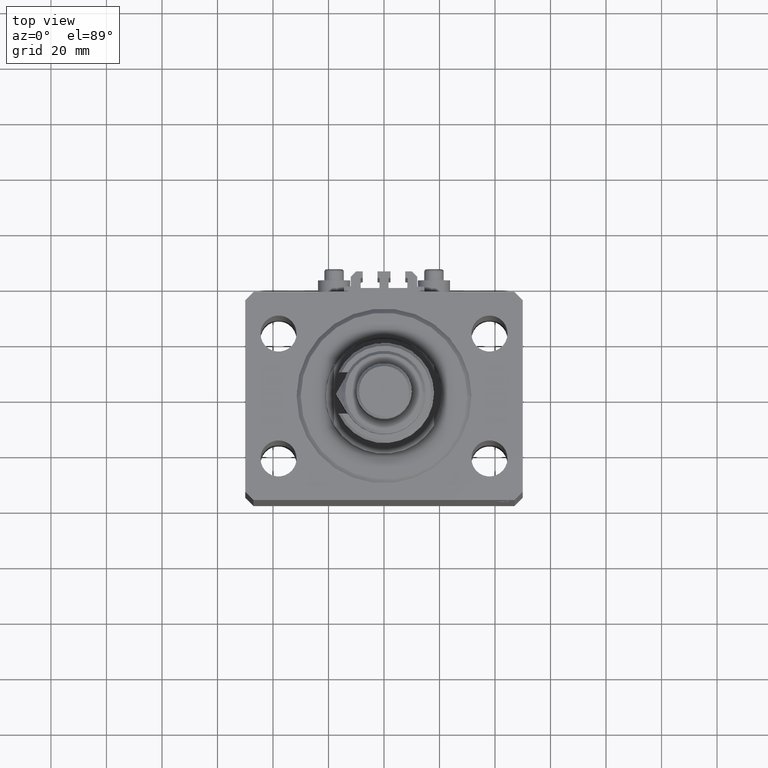
[diagram: clean part render]
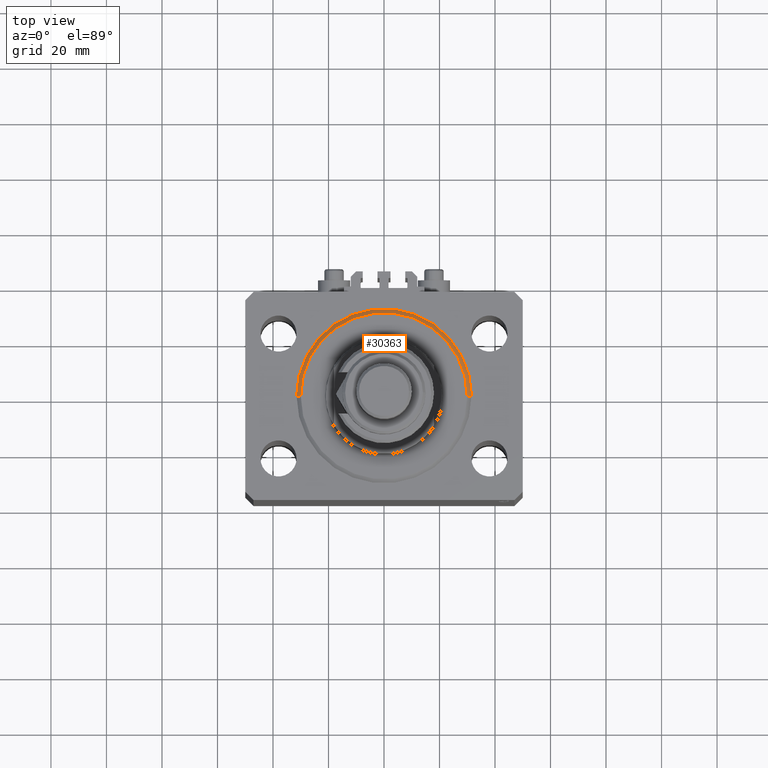
[diagram: same view with one face highlighted and labeled with its STEP entity id]
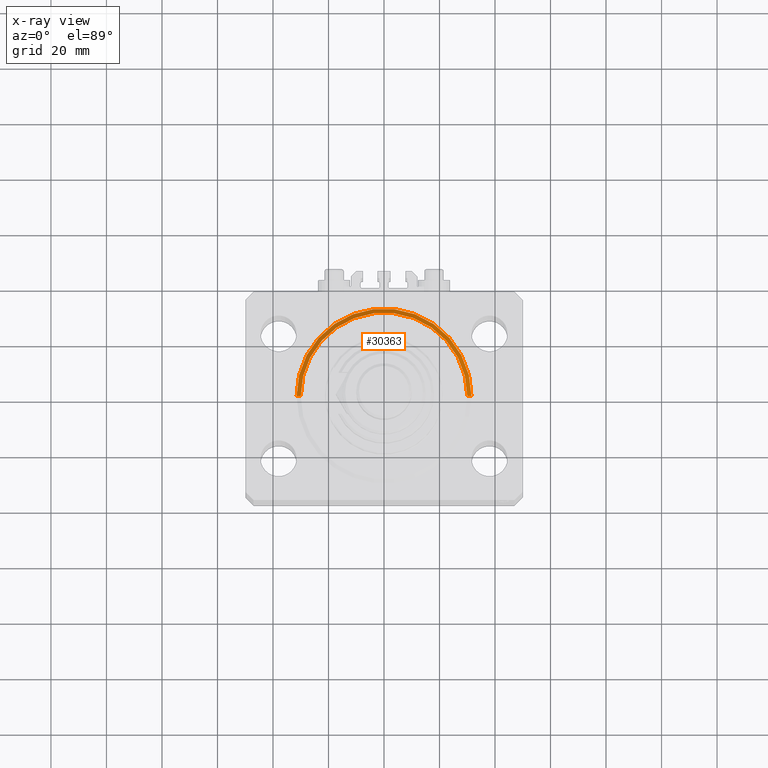
[diagram: x-ray of the same camera — body ghosted, the highlighted face saturated]
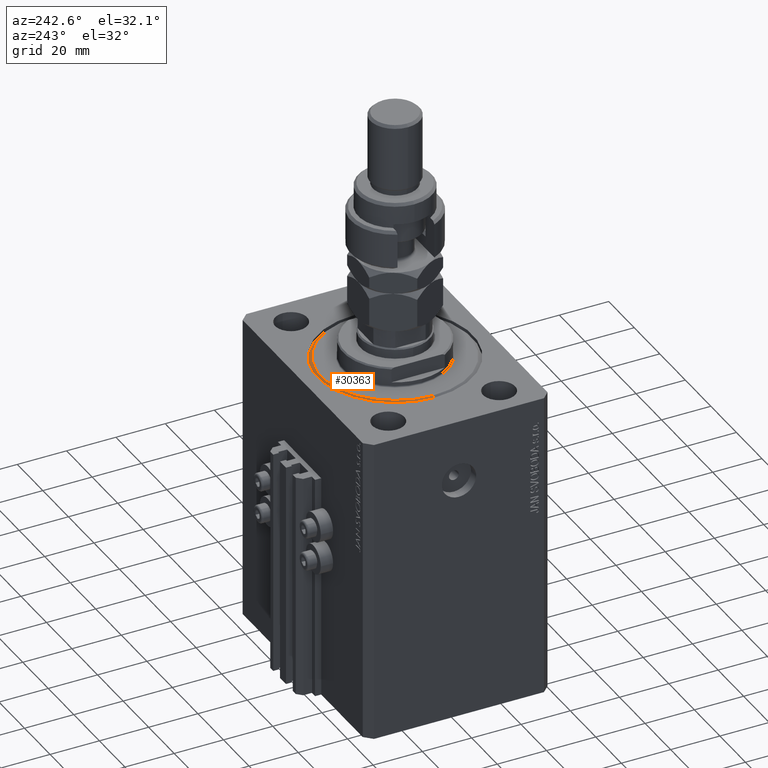
[diagram: same view with one face highlighted and labeled with its STEP entity id]
A machine part, top view. The second image highlights one B-rep face of the part: STEP entity #30363.
The next image is the same camera in x-ray: the body ghosted, the highlighted face saturated — about 0% of this face is hidden behind the body in this view.
A second angle (auxiliary view) of the same face is appended — the face is thin or edge-on in the first view.
In plain terms, the highlighted conical surface has half-angle 45 deg.
Its self-contained STEP definition (entity closure, byte-faithful):
#783 = ORIENTED_EDGE ( 'NONE', *, *, #45219, .F. ) ;
#3320 = CARTESIAN_POINT ( 'NONE',  ( -31.50000000000000000, 0.000000000000000000, 1.499999999999980460 ) ) ;
#4499 = CARTESIAN_POINT ( 'NONE',  ( 31.50000000000000000, 0.000000000000000000, 1.499999999999980460 ) ) ;
#5014 = DIRECTION ( 'NONE',  ( 0.7071067811865474617, 0.000000000000000000, 0.7071067811865474617 ) ) ;
#8256 = DIRECTION ( 'NONE',  ( 1.000000000000000000, 0.000000000000000000, 0.000000000000000000 ) ) ;
#8547 = CARTESIAN_POINT ( 'NONE',  ( 0.000000000000000000, 0.000000000000000000, 1.499999999999980460 ) ) ;
#8799 = DIRECTION ( 'NONE',  ( 1.000000000000000000, 0.000000000000000000, 0.000000000000000000 ) ) ;
#9583 = CARTESIAN_POINT ( 'NONE',  ( 30.00000000000002132, 0.000000000000000000, 0.000000000000000000 ) ) ;
#11577 = LINE ( 'NONE', #26322, #41954 ) ;
#13952 = EDGE_LOOP ( 'NONE', ( #783, #35321, #17487, #43012 ) ) ;
#14186 = VERTEX_POINT ( 'NONE', #38148 ) ;
#17487 = ORIENTED_EDGE ( 'NONE', *, *, #35734, .F. ) ;
#17535 = AXIS2_PLACEMENT_3D ( 'NONE', #8547, #39549, #48384 ) ;
#20227 = DIRECTION ( 'NONE',  ( -0.000000000000000000, -0.000000000000000000, -1.000000000000000000 ) ) ;
#20229 = FACE_OUTER_BOUND ( 'NONE', #13952, .T. ) ;
#20810 = VERTEX_POINT ( 'NONE', #3320 ) ;
#20939 = VECTOR ( 'NONE', #5014, 1000.000000000000114 ) ;
#20982 = CARTESIAN_POINT ( 'NONE',  ( 0.000000000000000000, 0.000000000000000000, 0.000000000000000000 ) ) ;
#26322 = CARTESIAN_POINT ( 'NONE',  ( -31.50000000000000000, 3.857637417314162689E-15, 1.499999999999980460 ) ) ;
#27075 = DIRECTION ( 'NONE',  ( -0.7071067811865474617, 8.659560562354932858E-17, 0.7071067811865474617 ) ) ;
#27549 = DIRECTION ( 'NONE',  ( -0.000000000000000000, -0.000000000000000000, 1.000000000000000000 ) ) ;
#27649 = AXIS2_PLACEMENT_3D ( 'NONE', #20982, #20227, #8799 ) ;
#30363 = ADVANCED_FACE ( 'NONE', ( #20229 ), #38622, .T. ) ;
#31496 = CIRCLE ( 'NONE', #35571, 31.50000000000000000 ) ;
#32162 = EDGE_CURVE ( 'NONE', #14186, #20810, #11577, .T. ) ;
#32429 = LINE ( 'NONE', #4499, #20939 ) ;
#32523 = CIRCLE ( 'NONE', #27649, 30.00000000000002132 ) ;
#35321 = ORIENTED_EDGE ( 'NONE', *, *, #32162, .T. ) ;
#35571 = AXIS2_PLACEMENT_3D ( 'NONE', #46831, #27549, #8256 ) ;
#35734 = EDGE_CURVE ( 'NONE', #41999, #20810, #31496, .T. ) ;
#36223 = CARTESIAN_POINT ( 'NONE',  ( 31.50000000000000000, 3.857637417314162689E-15, 1.499999999999980460 ) ) ;
#38148 = CARTESIAN_POINT ( 'NONE',  ( -30.00000000000002132, 3.765788907378112117E-15, 0.000000000000000000 ) ) ;
#38376 = EDGE_CURVE ( 'NONE', #41047, #41999, #32429, .T. ) ;
#38622 = CONICAL_SURFACE ( 'NONE', #17535, 31.50000000000000000, 0.7853981633974482790 ) ;
#39549 = DIRECTION ( 'NONE',  ( -0.000000000000000000, -0.000000000000000000, 1.000000000000000000 ) ) ;
#41047 = VERTEX_POINT ( 'NONE', #9583 ) ;
#41954 = VECTOR ( 'NONE', #27075, 1000.000000000000114 ) ;
#41999 = VERTEX_POINT ( 'NONE', #36223 ) ;
#43012 = ORIENTED_EDGE ( 'NONE', *, *, #38376, .F. ) ;
#45219 = EDGE_CURVE ( 'NONE', #14186, #41047, #32523, .T. ) ;
#46831 = CARTESIAN_POINT ( 'NONE',  ( 0.000000000000000000, 0.000000000000000000, 1.499999999999980460 ) ) ;
#48384 = DIRECTION ( 'NONE',  ( 1.000000000000000000, 0.000000000000000000, 0.000000000000000000 ) ) ;